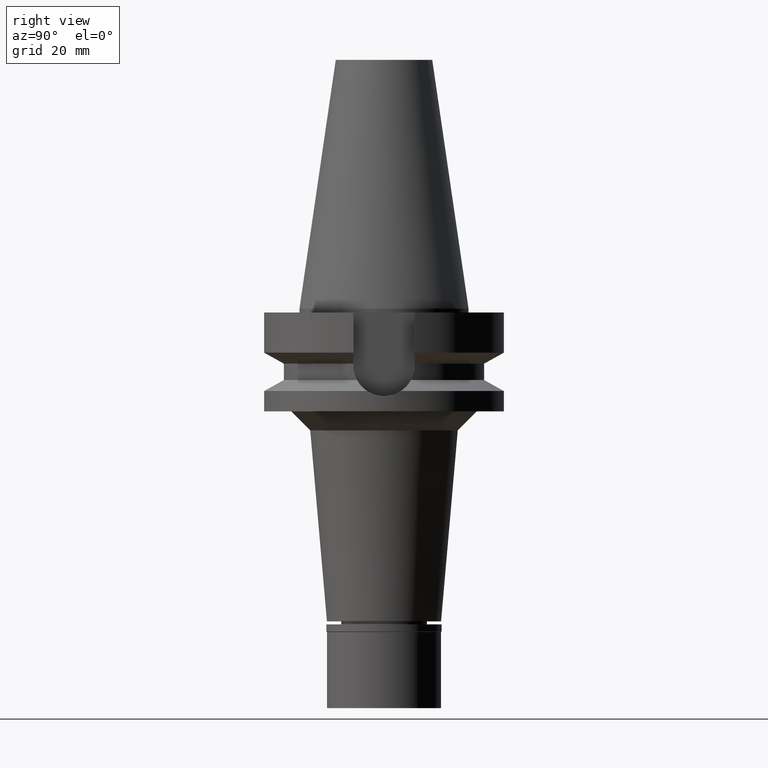
[diagram: clean part render]
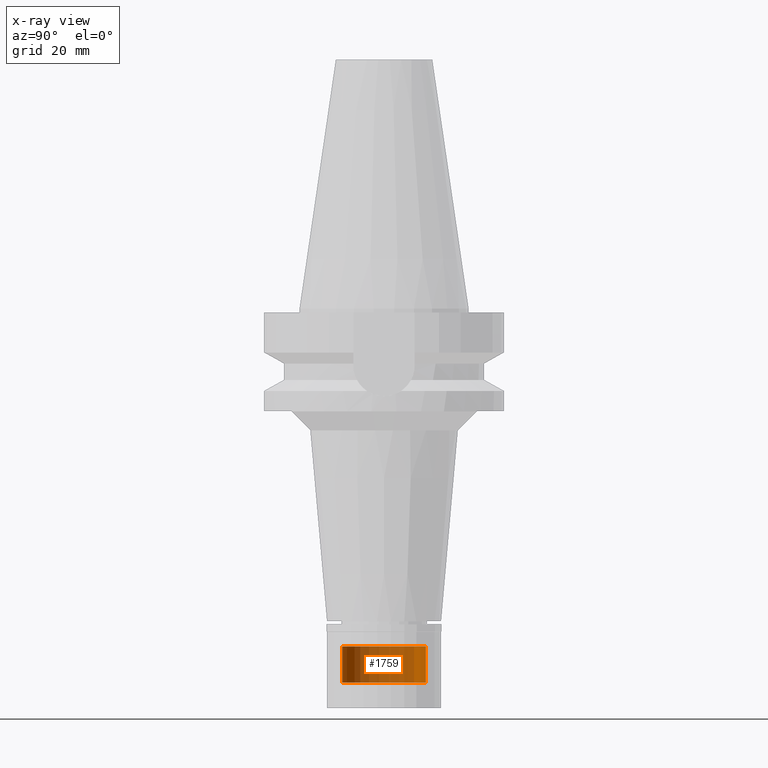
[diagram: x-ray — body ghosted, one internal face saturated and labeled with its STEP entity id]
A machine part, right view, then the same camera in x-ray: the body is ghosted and one INTERNAL B-rep face — a face not visible from any outside direction — is saturated and labeled: STEP entity #1759.
In plain terms, the highlighted cylindrical surface (partial cylindrical patch) has radius 11 mm, axis along (0, 0, -1).
Its self-contained STEP definition (entity closure, byte-faithful):
#13 = CIRCLE ( 'NONE', #425, 11.00000000000000000 ) ;
#43 = ORIENTED_EDGE ( 'NONE', *, *, #853, .T. ) ;
#163 = DIRECTION ( 'NONE',  ( 0.0000000000000000000, 0.0000000000000000000, -1.000000000000000000 ) ) ;
#217 = CIRCLE ( 'NONE', #271, 11.00000000000000000 ) ;
#271 = AXIS2_PLACEMENT_3D ( 'NONE', #2326, #163, #2574 ) ;
#332 = FACE_OUTER_BOUND ( 'NONE', #3125, .T. ) ;
#398 = DIRECTION ( 'NONE',  ( 0.0000000000000000000, 0.0000000000000000000, 1.000000000000000000 ) ) ;
#425 = AXIS2_PLACEMENT_3D ( 'NONE', #2156, #398, #1917 ) ;
#736 = VECTOR ( 'NONE', #2642, 1000.000000000000000 ) ;
#853 = EDGE_CURVE ( 'NONE', #1984, #2702, #217, .T. ) ;
#869 = ORIENTED_EDGE ( 'NONE', *, *, #3109, .T. ) ;
#880 = CARTESIAN_POINT ( 'NONE',  ( 0.0000000000000000000, 11.00000000000000000, -98.29999999999999716 ) ) ;
#945 = LINE ( 'NONE', #1421, #736 ) ;
#948 = VERTEX_POINT ( 'NONE', #2500 ) ;
#1089 = VECTOR ( 'NONE', #1424, 1000.000000000000000 ) ;
#1166 = ORIENTED_EDGE ( 'NONE', *, *, #2031, .T. ) ;
#1249 = AXIS2_PLACEMENT_3D ( 'NONE', #2826, #1580, #2268 ) ;
#1418 = ORIENTED_EDGE ( 'NONE', *, *, #2008, .F. ) ;
#1421 = CARTESIAN_POINT ( 'NONE',  ( 0.0000000000000000000, -11.00000000000000000, -88.79999999999999716 ) ) ;
#1424 = DIRECTION ( 'NONE',  ( 0.0000000000000000000, 0.0000000000000000000, -1.000000000000000000 ) ) ;
#1580 = DIRECTION ( 'NONE',  ( 0.0000000000000000000, 0.0000000000000000000, -1.000000000000000000 ) ) ;
#1741 = VERTEX_POINT ( 'NONE', #880 ) ;
#1759 = ADVANCED_FACE ( 'NONE', ( #332 ), #2512, .T. ) ;
#1879 = LINE ( 'NONE', #1892, #1089 ) ;
#1881 = CARTESIAN_POINT ( 'NONE',  ( 0.0000000000000000000, 11.00000000000000000, -88.79999999999999716 ) ) ;
#1892 = CARTESIAN_POINT ( 'NONE',  ( 0.0000000000000000000, 11.00000000000000000, -88.79999999999999716 ) ) ;
#1917 = DIRECTION ( 'NONE',  ( 0.0000000000000000000, 1.000000000000000000, 0.0000000000000000000 ) ) ;
#1984 = VERTEX_POINT ( 'NONE', #2895 ) ;
#2008 = EDGE_CURVE ( 'NONE', #1984, #948, #945, .T. ) ;
#2031 = EDGE_CURVE ( 'NONE', #1741, #948, #13, .T. ) ;
#2156 = CARTESIAN_POINT ( 'NONE',  ( 0.0000000000000000000, 2.125803146300000032E-14, -98.29999999999999716 ) ) ;
#2268 = DIRECTION ( 'NONE',  ( 0.0000000000000000000, -1.000000000000000000, 0.0000000000000000000 ) ) ;
#2326 = CARTESIAN_POINT ( 'NONE',  ( 0.0000000000000000000, 2.125803146300000032E-14, -88.79999999999999716 ) ) ;
#2500 = CARTESIAN_POINT ( 'NONE',  ( 0.0000000000000000000, -11.00000000000000000, -98.29999999999999716 ) ) ;
#2512 = CYLINDRICAL_SURFACE ( 'NONE', #1249, 11.00000000000000000 ) ;
#2574 = DIRECTION ( 'NONE',  ( 0.0000000000000000000, -1.000000000000000000, 0.0000000000000000000 ) ) ;
#2642 = DIRECTION ( 'NONE',  ( 0.0000000000000000000, 0.0000000000000000000, -1.000000000000000000 ) ) ;
#2702 = VERTEX_POINT ( 'NONE', #1881 ) ;
#2826 = CARTESIAN_POINT ( 'NONE',  ( 0.0000000000000000000, 2.125803146300000032E-14, 73.58499999999999375 ) ) ;
#2895 = CARTESIAN_POINT ( 'NONE',  ( 0.0000000000000000000, -11.00000000000000000, -88.79999999999999716 ) ) ;
#3109 = EDGE_CURVE ( 'NONE', #2702, #1741, #1879, .T. ) ;
#3125 = EDGE_LOOP ( 'NONE', ( #1166, #1418, #43, #869 ) ) ;